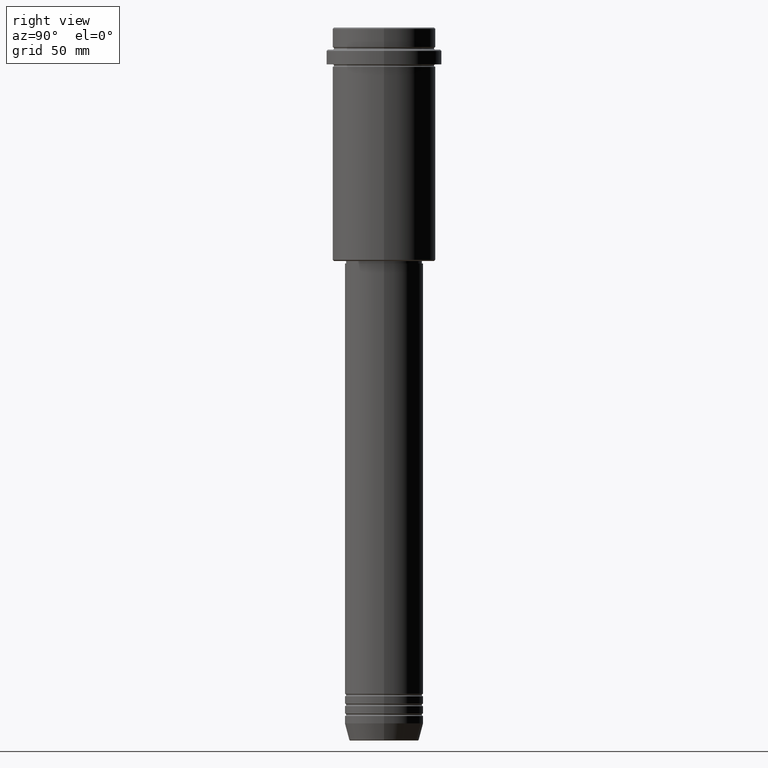
[diagram: clean part render]
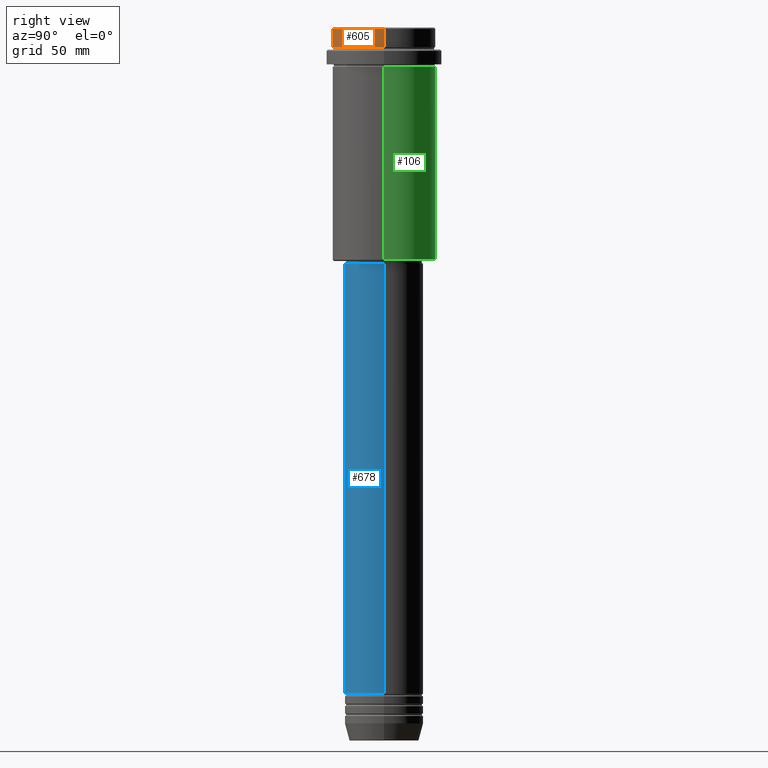
[diagram: same view with three faces highlighted in distinct colors, each labeled with its STEP entity id]
A machine part, right view with three faces highlighted in distinct colors.
Their STEP definitions:

[orange] entity #605 — the highlighted cylindrical surface (partial cylindrical patch) has radius 21 mm, axis along (-0, -0, 1).
#49 = VECTOR ( 'NONE', #722, 1000.000000000000000 ) ;
#62 = DIRECTION ( 'NONE',  ( -0.000000000000000000, -0.000000000000000000, 1.000000000000000000 ) ) ;
#192 = ORIENTED_EDGE ( 'NONE', *, *, #435, .T. ) ;
#211 = LINE ( 'NONE', #1417, #968 ) ;
#219 = EDGE_CURVE ( 'NONE', #376, #1287, #211, .T. ) ;
#250 = VERTEX_POINT ( 'NONE', #790 ) ;
#277 = ORIENTED_EDGE ( 'NONE', *, *, #219, .F. ) ;
#316 = ORIENTED_EDGE ( 'NONE', *, *, #1332, .T. ) ;
#340 = AXIS2_PLACEMENT_3D ( 'NONE', #1364, #1162, #1174 ) ;
#376 = VERTEX_POINT ( 'NONE', #927 ) ;
#414 = VERTEX_POINT ( 'NONE', #1069 ) ;
#435 = EDGE_CURVE ( 'NONE', #414, #1287, #876, .T. ) ;
#484 = AXIS2_PLACEMENT_3D ( 'NONE', #734, #1285, #1410 ) ;
#605 = ADVANCED_FACE ( 'NONE', ( #971 ), #962, .T. ) ;
#614 = CARTESIAN_POINT ( 'NONE',  ( -20.99999999999999645, 2.571758278209441267E-15, -0.4999999999999796274 ) ) ;
#701 = DIRECTION ( 'NONE',  ( 1.000000000000000000, 0.000000000000000000, 0.000000000000000000 ) ) ;
#722 = DIRECTION ( 'NONE',  ( -0.000000000000000000, -0.000000000000000000, 1.000000000000000000 ) ) ;
#734 = CARTESIAN_POINT ( 'NONE',  ( 0.000000000000000000, 0.000000000000000000, 0.000000000000000000 ) ) ;
#790 = CARTESIAN_POINT ( 'NONE',  ( 20.99999999999999645, 0.000000000000000000, -7.999999999999998224 ) ) ;
#799 = ORIENTED_EDGE ( 'NONE', *, *, #935, .T. ) ;
#834 = AXIS2_PLACEMENT_3D ( 'NONE', #1060, #62, #701 ) ;
#876 = CIRCLE ( 'NONE', #340, 20.99999999999999645 ) ;
#919 = EDGE_LOOP ( 'NONE', ( #277, #316, #799, #192 ) ) ;
#927 = CARTESIAN_POINT ( 'NONE',  ( -20.99999999999999645, 2.571758278209441267E-15, -7.999999999999998224 ) ) ;
#935 = EDGE_CURVE ( 'NONE', #250, #414, #1160, .T. ) ;
#962 = CYLINDRICAL_SURFACE ( 'NONE', #484, 20.99999999999999645 ) ;
#968 = VECTOR ( 'NONE', #1075, 1000.000000000000000 ) ;
#971 = FACE_OUTER_BOUND ( 'NONE', #919, .T. ) ;
#1060 = CARTESIAN_POINT ( 'NONE',  ( 0.000000000000000000, 0.000000000000000000, -7.999999999999998224 ) ) ;
#1069 = CARTESIAN_POINT ( 'NONE',  ( 20.99999999999999645, 0.000000000000000000, -0.4999999999999796274 ) ) ;
#1075 = DIRECTION ( 'NONE',  ( -0.000000000000000000, -0.000000000000000000, 1.000000000000000000 ) ) ;
#1160 = LINE ( 'NONE', #1270, #49 ) ;
#1162 = DIRECTION ( 'NONE',  ( 0.000000000000000000, 0.000000000000000000, -1.000000000000000000 ) ) ;
#1174 = DIRECTION ( 'NONE',  ( 1.000000000000000000, 0.000000000000000000, 0.000000000000000000 ) ) ;
#1204 = CIRCLE ( 'NONE', #834, 20.99999999999999645 ) ;
#1270 = CARTESIAN_POINT ( 'NONE',  ( 20.99999999999999645, 0.000000000000000000, 0.000000000000000000 ) ) ;
#1285 = DIRECTION ( 'NONE',  ( -0.000000000000000000, -0.000000000000000000, 1.000000000000000000 ) ) ;
#1287 = VERTEX_POINT ( 'NONE', #614 ) ;
#1332 = EDGE_CURVE ( 'NONE', #376, #250, #1204, .T. ) ;
#1364 = CARTESIAN_POINT ( 'NONE',  ( 0.000000000000000000, 0.000000000000000000, -0.4999999999999796274 ) ) ;
#1410 = DIRECTION ( 'NONE',  ( 1.000000000000000000, 0.000000000000000000, 0.000000000000000000 ) ) ;
#1417 = CARTESIAN_POINT ( 'NONE',  ( -20.99999999999999645, 2.571758278209441267E-15, 0.000000000000000000 ) ) ;

[blue] entity #678 — the highlighted cylindrical surface (partial cylindrical patch) has radius 16 mm, axis along (-0, -0, 1).
#24 = CIRCLE ( 'NONE', #220, 16.00000000000000355 ) ;
#26 = DIRECTION ( 'NONE',  ( -0.000000000000000000, -0.000000000000000000, 1.000000000000000000 ) ) ;
#42 = DIRECTION ( 'NONE',  ( -0.000000000000000000, -0.000000000000000000, 1.000000000000000000 ) ) ;
#66 = DIRECTION ( 'NONE',  ( 1.000000000000000000, 0.000000000000000000, 0.000000000000000000 ) ) ;
#91 = EDGE_CURVE ( 'NONE', #978, #612, #24, .T. ) ;
#153 = AXIS2_PLACEMENT_3D ( 'NONE', #741, #26, #892 ) ;
#194 = LINE ( 'NONE', #528, #249 ) ;
#199 = VECTOR ( 'NONE', #1182, 1000.000000000000000 ) ;
#220 = AXIS2_PLACEMENT_3D ( 'NONE', #1064, #705, #66 ) ;
#249 = VECTOR ( 'NONE', #1415, 1000.000000000000000 ) ;
#306 = CYLINDRICAL_SURFACE ( 'NONE', #153, 16.00000000000000000 ) ;
#327 = LINE ( 'NONE', #407, #199 ) ;
#377 = CARTESIAN_POINT ( 'NONE',  ( 16.00000000000000000, 0.000000000000000000, -270.9999999999998863 ) ) ;
#406 = DIRECTION ( 'NONE',  ( 1.000000000000000000, 0.000000000000000000, 0.000000000000000000 ) ) ;
#407 = CARTESIAN_POINT ( 'NONE',  ( 16.00000000000000000, 0.000000000000000000, 0.000000000000000000 ) ) ;
#417 = CIRCLE ( 'NONE', #1202, 16.00000000000000000 ) ;
#449 = ORIENTED_EDGE ( 'NONE', *, *, #667, .T. ) ;
#475 = CARTESIAN_POINT ( 'NONE',  ( 0.000000000000000000, 0.000000000000000000, -270.9999999999998863 ) ) ;
#488 = VERTEX_POINT ( 'NONE', #833 ) ;
#520 = EDGE_CURVE ( 'NONE', #488, #978, #194, .T. ) ;
#528 = CARTESIAN_POINT ( 'NONE',  ( -16.00000000000000000, 1.959434878635765131E-15, 0.000000000000000000 ) ) ;
#538 = CARTESIAN_POINT ( 'NONE',  ( -16.00000000000000355, 1.959434878635765526E-15, -95.99999999999991473 ) ) ;
#612 = VERTEX_POINT ( 'NONE', #1392 ) ;
#667 = EDGE_CURVE ( 'NONE', #866, #612, #327, .T. ) ;
#678 = ADVANCED_FACE ( 'NONE', ( #1074 ), #306, .T. ) ;
#705 = DIRECTION ( 'NONE',  ( -0.000000000000000000, -0.000000000000000000, 1.000000000000000000 ) ) ;
#718 = ORIENTED_EDGE ( 'NONE', *, *, #954, .T. ) ;
#741 = CARTESIAN_POINT ( 'NONE',  ( 0.000000000000000000, 0.000000000000000000, 0.000000000000000000 ) ) ;
#742 = EDGE_LOOP ( 'NONE', ( #884, #718, #449, #1375 ) ) ;
#833 = CARTESIAN_POINT ( 'NONE',  ( -16.00000000000000000, 1.959434878635765131E-15, -270.9999999999998863 ) ) ;
#866 = VERTEX_POINT ( 'NONE', #377 ) ;
#884 = ORIENTED_EDGE ( 'NONE', *, *, #520, .F. ) ;
#892 = DIRECTION ( 'NONE',  ( 1.000000000000000000, 0.000000000000000000, 0.000000000000000000 ) ) ;
#954 = EDGE_CURVE ( 'NONE', #488, #866, #417, .T. ) ;
#978 = VERTEX_POINT ( 'NONE', #538 ) ;
#1064 = CARTESIAN_POINT ( 'NONE',  ( 0.000000000000000000, 0.000000000000000000, -95.99999999999991473 ) ) ;
#1074 = FACE_OUTER_BOUND ( 'NONE', #742, .T. ) ;
#1182 = DIRECTION ( 'NONE',  ( -0.000000000000000000, -0.000000000000000000, 1.000000000000000000 ) ) ;
#1202 = AXIS2_PLACEMENT_3D ( 'NONE', #475, #42, #406 ) ;
#1375 = ORIENTED_EDGE ( 'NONE', *, *, #91, .F. ) ;
#1392 = CARTESIAN_POINT ( 'NONE',  ( 16.00000000000000355, 0.000000000000000000, -95.99999999999991473 ) ) ;
#1415 = DIRECTION ( 'NONE',  ( -0.000000000000000000, -0.000000000000000000, 1.000000000000000000 ) ) ;

[green] entity #106 — the highlighted cylindrical surface (partial cylindrical patch) has radius 21 mm, axis along (-0, -0, 1).
#13 = VERTEX_POINT ( 'NONE', #957 ) ;
#52 = DIRECTION ( 'NONE',  ( 1.000000000000000000, 0.000000000000000000, 0.000000000000000000 ) ) ;
#79 = VERTEX_POINT ( 'NONE', #825 ) ;
#87 = CARTESIAN_POINT ( 'NONE',  ( -20.99999999999999645, 2.571758278209441267E-15, 0.000000000000000000 ) ) ;
#106 = ADVANCED_FACE ( 'NONE', ( #524 ), #548, .T. ) ;
#146 = CARTESIAN_POINT ( 'NONE',  ( -20.99999999999999645, 2.571758278209441267E-15, -94.49999999999995737 ) ) ;
#202 = EDGE_CURVE ( 'NONE', #356, #79, #663, .T. ) ;
#207 = EDGE_LOOP ( 'NONE', ( #1298, #1280, #462, #1033 ) ) ;
#259 = DIRECTION ( 'NONE',  ( -0.000000000000000000, -0.000000000000000000, 1.000000000000000000 ) ) ;
#356 = VERTEX_POINT ( 'NONE', #584 ) ;
#402 = VERTEX_POINT ( 'NONE', #146 ) ;
#413 = VECTOR ( 'NONE', #1211, 1000.000000000000000 ) ;
#438 = AXIS2_PLACEMENT_3D ( 'NONE', #510, #259, #52 ) ;
#462 = ORIENTED_EDGE ( 'NONE', *, *, #494, .F. ) ;
#486 = CIRCLE ( 'NONE', #1158, 20.99999999999999645 ) ;
#494 = EDGE_CURVE ( 'NONE', #79, #13, #851, .T. ) ;
#510 = CARTESIAN_POINT ( 'NONE',  ( 0.000000000000000000, 0.000000000000000000, -16.00000000000000355 ) ) ;
#524 = FACE_OUTER_BOUND ( 'NONE', #207, .T. ) ;
#527 = EDGE_CURVE ( 'NONE', #402, #13, #1078, .T. ) ;
#529 = AXIS2_PLACEMENT_3D ( 'NONE', #992, #1079, #657 ) ;
#548 = CYLINDRICAL_SURFACE ( 'NONE', #529, 20.99999999999999645 ) ;
#584 = CARTESIAN_POINT ( 'NONE',  ( 20.99999999999999645, 0.000000000000000000, -94.49999999999995737 ) ) ;
#648 = CARTESIAN_POINT ( 'NONE',  ( 20.99999999999999645, 0.000000000000000000, 0.000000000000000000 ) ) ;
#657 = DIRECTION ( 'NONE',  ( 1.000000000000000000, 0.000000000000000000, 0.000000000000000000 ) ) ;
#663 = LINE ( 'NONE', #648, #413 ) ;
#825 = CARTESIAN_POINT ( 'NONE',  ( 20.99999999999999645, 0.000000000000000000, -16.00000000000000355 ) ) ;
#851 = CIRCLE ( 'NONE', #438, 20.99999999999999645 ) ;
#878 = EDGE_CURVE ( 'NONE', #356, #402, #486, .T. ) ;
#957 = CARTESIAN_POINT ( 'NONE',  ( -20.99999999999999645, 2.571758278209441267E-15, -16.00000000000000355 ) ) ;
#992 = CARTESIAN_POINT ( 'NONE',  ( 0.000000000000000000, 0.000000000000000000, 0.000000000000000000 ) ) ;
#1033 = ORIENTED_EDGE ( 'NONE', *, *, #202, .F. ) ;
#1078 = LINE ( 'NONE', #87, #1310 ) ;
#1079 = DIRECTION ( 'NONE',  ( -0.000000000000000000, -0.000000000000000000, 1.000000000000000000 ) ) ;
#1158 = AXIS2_PLACEMENT_3D ( 'NONE', #1367, #1167, #1255 ) ;
#1167 = DIRECTION ( 'NONE',  ( -0.000000000000000000, -0.000000000000000000, 1.000000000000000000 ) ) ;
#1208 = DIRECTION ( 'NONE',  ( -0.000000000000000000, -0.000000000000000000, 1.000000000000000000 ) ) ;
#1211 = DIRECTION ( 'NONE',  ( -0.000000000000000000, -0.000000000000000000, 1.000000000000000000 ) ) ;
#1255 = DIRECTION ( 'NONE',  ( -1.000000000000000000, 0.000000000000000000, 0.000000000000000000 ) ) ;
#1280 = ORIENTED_EDGE ( 'NONE', *, *, #527, .T. ) ;
#1298 = ORIENTED_EDGE ( 'NONE', *, *, #878, .T. ) ;
#1310 = VECTOR ( 'NONE', #1208, 1000.000000000000000 ) ;
#1367 = CARTESIAN_POINT ( 'NONE',  ( 0.000000000000000000, 0.000000000000000000, -94.49999999999995737 ) ) ;